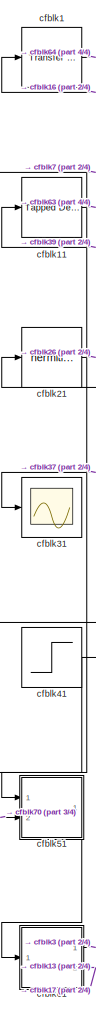
[diagram: root canvas - part 1/4, left side, full height]
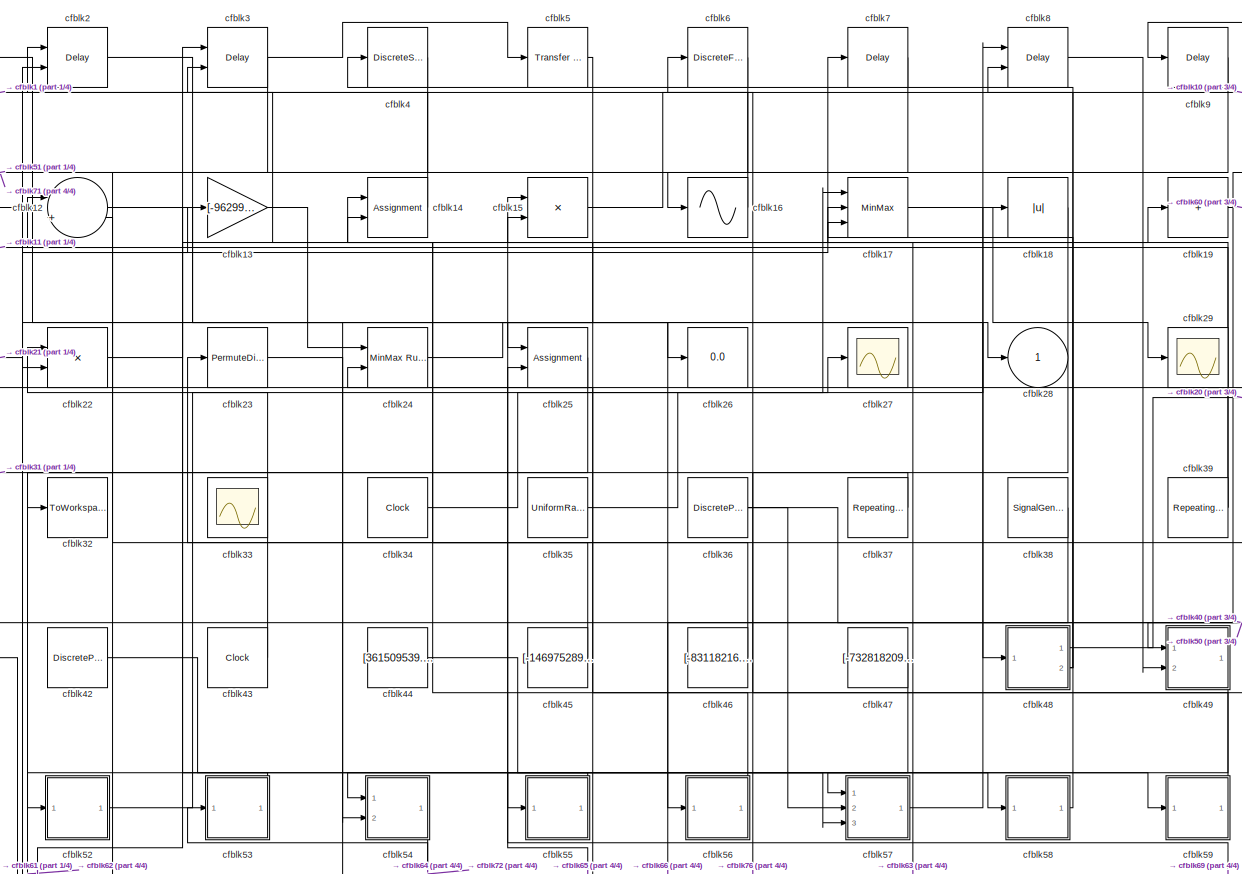
[diagram: root canvas - part 2/4, full width, middle band]
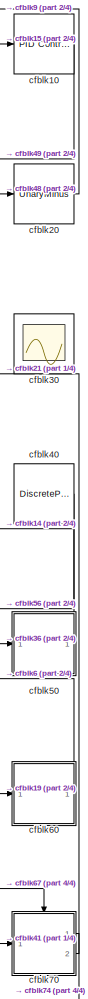
[diagram: root canvas - part 3/4, right side, full height]
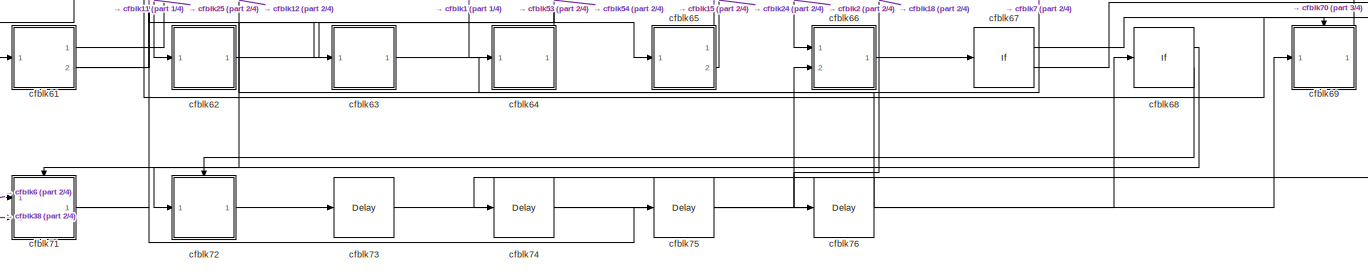
[diagram: root canvas - part 4/4, full width, bottom band]
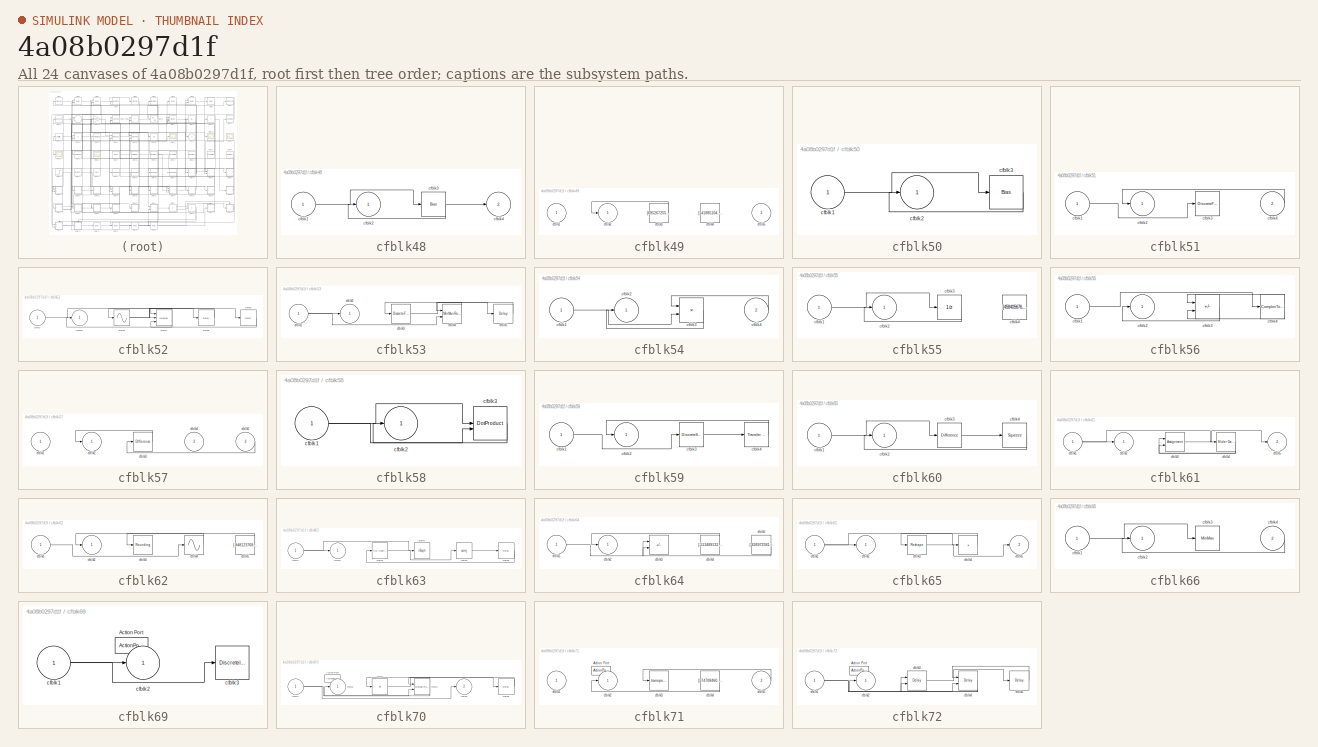
[diagram: thumbnail index - all 24 canvases of the model, root first then tree order]
MODEL slx_4a08b0297d1f
KIND model
CONFIG AbsTol = auto
CONFIG EnableMultiTasking = off
CONFIG FixedStep = auto
CONFIG MaxStep = auto
CONFIG MinStep = auto
CONFIG RelTol = 1e-3
CONFIG SampleTimeConstraint = Unconstrained
CONFIG SolverName = VariableStepAuto
CONFIG StartTime = 0.0
CONFIG StopTime = 10.0
BLOCK [Reference] cfblk1  REF=simulink/Discrete/Transfer Fcn
Real Zero
  Ports = [1, 1]
  SourceBlock = simulink/Discrete/Transfer Fcn\nReal Zero
  SourceProductBaseCode = SL
  SourceType = Transfer Fcn Real Zero
BLOCK [Reference] cfblk10  REF=slpidlib/PID Controller
  Ports = [1, 1]
  SourceBlock = slpidlib/PID Controller
  SourceProductBaseCode = SL
  SourceType = PID 1dof
BLOCK [Reference] cfblk11  REF=simulink/Discrete/Tapped Delay
  Ports = [1, 1]
  SourceBlock = simulink/Discrete/Tapped Delay
  SourceProductBaseCode = SL
  SourceType = Tapped Delay Line
BLOCK [Sum] cfblk12
  Inputs = |++
  Ports = [2, 1]
BLOCK [Gain] cfblk13
  Gain = [-962996448.991357]
BLOCK [Assignment] cfblk14
  DiagnosticForDimensions = Warning
  IndexOptions = Index vector (dialog)
  Indices = 1
  OutputSizes = 1
  Ports = [2, 1]
BLOCK [Product] cfblk15
  Inputs = **
  Ports = [2, 1]
BLOCK [Sin] cfblk16
  Ports = [1, 1]
  SampleTime = 0
  TimeSource = Use external signal
BLOCK [MinMax] cfblk17
  Inputs = 3
  Ports = [3, 1]
BLOCK [Abs] cfblk18
  SaturateOnIntegerOverflow = off
BLOCK [Sum] cfblk19
  IconShape = rectangular
  Inputs = +
  Ports = [1, 1]
BLOCK [Delay] cfblk2
  InputPortMap = u0,e6
  Ports = [2, 1]
  SampleTime = 1
  ShowEnablePort = on
BLOCK [UnaryMinus] cfblk20
BLOCK [Math] cfblk21
  Operator = hermitian
  Ports = [1, 1]
BLOCK [Product] cfblk22
  Ports = [2, 1]
BLOCK [PermuteDimensions] cfblk23
BLOCK [Reference] cfblk24  REF=simulink/Math
Operations/MinMax
Running
Resettable
  Ports = [2, 1]
  SourceBlock = simulink/Math\nOperations/MinMax\nRunning\nResettable
  SourceProductBaseCode = SL
  SourceType = MinMax Running Resettable
BLOCK [Assignment] cfblk25
  DiagnosticForDimensions = Warning
  IndexOptions = Index vector (dialog)
  Indices = 1
  OutputSizes = 1
  Ports = [2, 1]
BLOCK [Display] cfblk26
  Decimation = 1
  Ports = [1]
BLOCK [Scope] cfblk27
  Floating = off
  NumInputPorts = 1
  Ports = [1]
BLOCK [Outport] cfblk28
BLOCK [Scope] cfblk29
  Floating = off
  NumInputPorts = 1
  Ports = [1]
BLOCK [Delay] cfblk3
  DelayLengthSource = Input port
  InputPortMap = u0,p1
  Ports = [2, 1]
  SampleTime = 1
BLOCK [Scope] cfblk30
  Floating = on
  NumInputPorts = 1
  Ports = []
BLOCK [Scope] cfblk31
  Floating = off
  NumInputPorts = 1
  Ports = [1]
BLOCK [ToWorkspace] cfblk32
  FixptAsFi = on
  MaxDataPoints = inf
  Ports = [1]
  SampleTime = -1
  SaveFormat = Timeseries
  VariableName = fbnziih
BLOCK [Scope] cfblk33
  Floating = on
  NumInputPorts = 1
  Ports = []
BLOCK [Clock] cfblk34
BLOCK [UniformRandomNumber] cfblk35
  Maximum = [926374637.674813]
  Minimum = [-899286631.365557]
  SampleTime = 0.1
  Seed = [29961251.000000]
BLOCK [DiscretePulseGenerator] cfblk36
  Amplitude = [-229932687.777880]
  Period = [45551457.164221]
  PhaseDelay = [1.000000]
  Ports = [0, 1]
  PulseType = Time based
  PulseWidth = 5
BLOCK [Reference] cfblk37  REF=simulink/Sources/Repeating
Sequence
Stair
  Ports = [0, 1]
  SourceBlock = simulink/Sources/Repeating\nSequence\nStair
  SourceProductBaseCode = SL
  SourceType = Repeating Sequence Stair
BLOCK [SignalGenerator] cfblk38
  Amplitude = [754582492.273324]
  Ports = [0, 1]
  WaveForm = sawtooth
BLOCK [Reference] cfblk39  REF=simulink/Sources/Repeating
Sequence
Stair
  Ports = [0, 1]
  SourceBlock = simulink/Sources/Repeating\nSequence\nStair
  SourceProductBaseCode = SL
  SourceType = Repeating Sequence Stair
BLOCK [DiscreteStateSpace] cfblk4
BLOCK [DiscretePulseGenerator] cfblk40
  Amplitude = [574486039.532884]
  Period = [50865221.708180]
  PhaseDelay = [9.000000]
  Ports = [0, 1]
  PulseType = Time based
  PulseWidth = 5
BLOCK [Step] cfblk41
  After = [727022532.262540]
  Before = [271111049.835422]
  SampleTime = 0
  Time = [32.000000]
BLOCK [DiscretePulseGenerator] cfblk42
  Amplitude = [-857152997.487512]
  Period = [21737191.178487]
  PhaseDelay = [9.000000]
  Ports = [0, 1]
  PulseType = Time based
  PulseWidth = 5
BLOCK [Clock] cfblk43
BLOCK [Constant] cfblk44
  SampleTime = 1
  Value = [361509539.437803]
BLOCK [Constant] cfblk45
  SampleTime = 1
  Value = [-146975289.230768]
BLOCK [Constant] cfblk46
  SampleTime = 1
  Value = [-83118216.263977]
BLOCK [Constant] cfblk47
  SampleTime = 1
  Value = [-732818209.951177]
BLOCK [SubSystem] cfblk48
  Ports = [1, 2]
  RequestExecContextInheritance = off
BLOCK [Inport] cfblk48/cfblk1
BLOCK [Outport] cfblk48/cfblk2
BLOCK [Bias] cfblk48/cfblk3
  Bias = [-28596696.417519]
  SaturateOnIntegerOverflow = off
BLOCK [Outport] cfblk48/cfblk4
  Port = 2
BLOCK [SubSystem] cfblk49
  Ports = [2, 1]
  RequestExecContextInheritance = off
BLOCK [Inport] cfblk49/cfblk1
BLOCK [Outport] cfblk49/cfblk2
BLOCK [Constant] cfblk49/cfblk3
  SampleTime = 1
  Value = [695267255.341315]
BLOCK [Constant] cfblk49/cfblk4
  SampleTime = 1
  Value = [141885104.239582]
BLOCK [Inport] cfblk49/cfblk5
  Port = 2
BLOCK [Reference] cfblk5  REF=simulink/Discrete/Transfer Fcn
First Order
  Ports = [1, 1]
  SourceBlock = simulink/Discrete/Transfer Fcn\nFirst Order
  SourceProductBaseCode = SL
  SourceType = First Order Transfer Fcn
BLOCK [SubSystem] cfblk50
  Ports = [1, 1]
  RequestExecContextInheritance = off
BLOCK [Inport] cfblk50/cfblk1
BLOCK [Outport] cfblk50/cfblk2
BLOCK [Bias] cfblk50/cfblk3
  Bias = [731161692.289361]
  SaturateOnIntegerOverflow = off
BLOCK [SubSystem] cfblk51
  Ports = [2, 1]
  RequestExecContextInheritance = off
BLOCK [Inport] cfblk51/cfblk1
BLOCK [Outport] cfblk51/cfblk2
BLOCK [DiscreteFilter] cfblk51/cfblk3
  InputPortMap = u0
  Ports = [1, 1]
  SampleTime = 1
BLOCK [Inport] cfblk51/cfblk4
  Port = 2
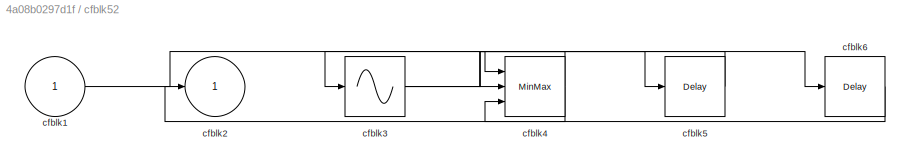
BLOCK [SubSystem] cfblk52
  Ports = [1, 1]
  RequestExecContextInheritance = off
BLOCK [Inport] cfblk52/cfblk1
BLOCK [Outport] cfblk52/cfblk2
BLOCK [Sin] cfblk52/cfblk3
  Ports = [1, 1]
  SampleTime = 0
  TimeSource = Use external signal
BLOCK [MinMax] cfblk52/cfblk4
  Inputs = 3
  Ports = [3, 1]
BLOCK [Delay] cfblk52/cfblk5
  InputPortMap = u0
  Ports = [1, 1]
  SampleTime = 1
BLOCK [Delay] cfblk52/cfblk6
  InputPortMap = u0
  Ports = [1, 1]
  SampleTime = 1
BLOCK [SubSystem] cfblk53
  Ports = [1, 1]
  RequestExecContextInheritance = off
BLOCK [Inport] cfblk53/cfblk1
BLOCK [Outport] cfblk53/cfblk2
BLOCK [DiscreteFir] cfblk53/cfblk3
  InputPortMap = u0
  OutputPortMap = o0
  Ports = [1, 1]
  SampleTime = 1
BLOCK [Reference] cfblk53/cfblk4  REF=simulink/Math
Operations/MinMax
Running
Resettable
  Ports = [2, 1]
  SourceBlock = simulink/Math\nOperations/MinMax\nRunning\nResettable
  SourceProductBaseCode = SL
  SourceType = MinMax Running Resettable
BLOCK [Delay] cfblk53/cfblk5
  InputPortMap = u0
  Ports = [1, 1]
  SampleTime = 1
BLOCK [SubSystem] cfblk54
  Ports = [2, 1]
  RequestExecContextInheritance = off
BLOCK [Inport] cfblk54/cfblk1
BLOCK [Outport] cfblk54/cfblk2
BLOCK [Product] cfblk54/cfblk3
  Inputs = **
  Ports = [2, 1]
BLOCK [Inport] cfblk54/cfblk4
  Port = 2
BLOCK [SubSystem] cfblk55
  Ports = [1, 1]
  RequestExecContextInheritance = off
BLOCK [Inport] cfblk55/cfblk1
BLOCK [Outport] cfblk55/cfblk2
BLOCK [UnitDelay] cfblk55/cfblk3
  HasFrameUpgradeWarning = on
BLOCK [Constant] cfblk55/cfblk4
  SampleTime = 1
  Value = [458405676.200662]
BLOCK [SubSystem] cfblk56
  Ports = [1, 1]
  RequestExecContextInheritance = off
BLOCK [Inport] cfblk56/cfblk1
BLOCK [Outport] cfblk56/cfblk2
BLOCK [Sum] cfblk56/cfblk3
  IconShape = rectangular
  Inputs = +-
  Ports = [2, 1]
BLOCK [ComplexToMagnitudeAngle] cfblk56/cfblk4
  Ports = [1, 2]
BLOCK [SubSystem] cfblk57
  Ports = [3, 1]
  RequestExecContextInheritance = off
BLOCK [Inport] cfblk57/cfblk1
BLOCK [Outport] cfblk57/cfblk2
BLOCK [Reference] cfblk57/cfblk3  REF=simulink/Discrete/Difference
  Ports = [1, 1]
  SourceBlock = simulink/Discrete/Difference
  SourceProductBaseCode = SL
  SourceType = Difference
BLOCK [Inport] cfblk57/cfblk4
  Port = 2
BLOCK [Inport] cfblk57/cfblk5
  Port = 3
BLOCK [SubSystem] cfblk58
  Ports = [1, 1]
  RequestExecContextInheritance = off
BLOCK [Inport] cfblk58/cfblk1
BLOCK [Outport] cfblk58/cfblk2
BLOCK [DotProduct] cfblk58/cfblk3
  OutDataTypeStr = Inherit: Inherit via internal rule
BLOCK [SubSystem] cfblk59
  Ports = [1, 1]
  RequestExecContextInheritance = off
BLOCK [Inport] cfblk59/cfblk1
BLOCK [Outport] cfblk59/cfblk2
BLOCK [DiscreteStateSpace] cfblk59/cfblk3
BLOCK [Reference] cfblk59/cfblk4  REF=simulink/Discrete/Transfer Fcn
Lead or Lag
  Ports = [1, 1]
  SourceBlock = simulink/Discrete/Transfer Fcn\nLead or Lag
  SourceProductBaseCode = SL
  SourceType = Lead or Lag Compensator
BLOCK [DiscreteFilter] cfblk6
  InputPortMap = u0
  Ports = [1, 1]
  SampleTime = 1
BLOCK [SubSystem] cfblk60
  Ports = [1, 1]
  RequestExecContextInheritance = off
BLOCK [Inport] cfblk60/cfblk1
BLOCK [Outport] cfblk60/cfblk2
BLOCK [Reference] cfblk60/cfblk3  REF=simulink/Discrete/Difference
  Ports = [1, 1]
  SourceBlock = simulink/Discrete/Difference
  SourceProductBaseCode = SL
  SourceType = Difference
BLOCK [Squeeze] cfblk60/cfblk4
BLOCK [SubSystem] cfblk61
  Ports = [1, 2]
  RequestExecContextInheritance = off
BLOCK [Inport] cfblk61/cfblk1
BLOCK [Outport] cfblk61/cfblk2
BLOCK [Assignment] cfblk61/cfblk3
  DiagnosticForDimensions = Warning
  IndexOptions = Index vector (dialog)
  Indices = 1
  OutputSizes = 1
  Ports = [2, 1]
BLOCK [Reference] cfblk61/cfblk4  REF=simulink/Math
Operations/Slider
Gain
  Ports = [1, 1]
  SourceBlock = simulink/Math\nOperations/Slider\nGain
  SourceProductBaseCode = SL
  SourceType = Slider Gain
BLOCK [Outport] cfblk61/cfblk5
  Port = 2
BLOCK [SubSystem] cfblk62
  Ports = [1, 1]
  RequestExecContextInheritance = off
BLOCK [Inport] cfblk62/cfblk1
BLOCK [Outport] cfblk62/cfblk2
BLOCK [Rounding] cfblk62/cfblk3
BLOCK [Sin] cfblk62/cfblk4
  Ports = [1, 1]
  SampleTime = 0
  TimeSource = Use external signal
BLOCK [Constant] cfblk62/cfblk5
  SampleTime = 1
  Value = [-948123768.890981]
BLOCK [SubSystem] cfblk63
  Ports = [1, 1]
  RequestExecContextInheritance = off
BLOCK [Inport] cfblk63/cfblk1
BLOCK [Outport] cfblk63/cfblk2
BLOCK [Reference] cfblk63/cfblk3  REF=slpidlib/PID Controller
  Ports = [1, 1]
  SourceBlock = slpidlib/PID Controller
  SourceProductBaseCode = SL
  SourceType = PID 1dof
BLOCK [Sqrt] cfblk63/cfblk4
  AlgorithmType = Newton-Raphson
  Operator = rSqrt
BLOCK [Math] cfblk63/cfblk5
  Operator = conj
  Ports = [1, 1]
BLOCK [Delay] cfblk63/cfblk6
  InputPortMap = u0
  Ports = [1, 1]
  SampleTime = 1
BLOCK [SubSystem] cfblk64
  Ports = [1, 1]
  RequestExecContextInheritance = off
BLOCK [Inport] cfblk64/cfblk1
BLOCK [Outport] cfblk64/cfblk2
BLOCK [Sum] cfblk64/cfblk3
  IconShape = rectangular
  Inputs = +-
  Ports = [2, 1]
BLOCK [Constant] cfblk64/cfblk4
  SampleTime = 1
  Value = [-513489132.461734]
BLOCK [Constant] cfblk64/cfblk5
  SampleTime = 1
  Value = [-426972581.160443]
BLOCK [SubSystem] cfblk65
  Ports = [1, 2]
  RequestExecContextInheritance = off
BLOCK [Inport] cfblk65/cfblk1
BLOCK [Outport] cfblk65/cfblk2
BLOCK [Reshape] cfblk65/cfblk3
  Ports = [1, 1]
BLOCK [Sum] cfblk65/cfblk4
  IconShape = rectangular
  Inputs = +
  Ports = [1, 1]
BLOCK [Outport] cfblk65/cfblk5
  Port = 2
BLOCK [SubSystem] cfblk66
  Ports = [2, 1]
  RequestExecContextInheritance = off
BLOCK [Inport] cfblk66/cfblk1
BLOCK [Outport] cfblk66/cfblk2
BLOCK [MinMax] cfblk66/cfblk3
  Ports = [1, 1]
BLOCK [Inport] cfblk66/cfblk4
  Port = 2
BLOCK [If] cfblk67
  IfExpression = u1 >= 0
  Ports = [1, 2]
  SampleTime = 1
BLOCK [If] cfblk68
  IfExpression = u1 >= 0
  Ports = [1, 2]
  SampleTime = 1
BLOCK [SubSystem] cfblk69
  Ports = [1, 1, 0, 0, 0, 0, 0, 1]
  RequestExecContextInheritance = off
  TreatAsAtomicUnit = on
BLOCK [ActionPort] cfblk69/Action Port
  ActionPortLabel = if(u1 >= 0)
BLOCK [Inport] cfblk69/cfblk1
BLOCK [Outport] cfblk69/cfblk2
BLOCK [DiscreteIntegrator] cfblk69/cfblk3
  ICPrevOutput = DiscIntNeverNeededParam
  ICPrevScaledInput = DiscIntNeverNeededParam
  InitialConditionSetting = Auto
  Ports = [1, 1]
  SampleTime = -1
BLOCK [Delay] cfblk7
  InputPortMap = u0
  Ports = [1, 1]
  SampleTime = 1
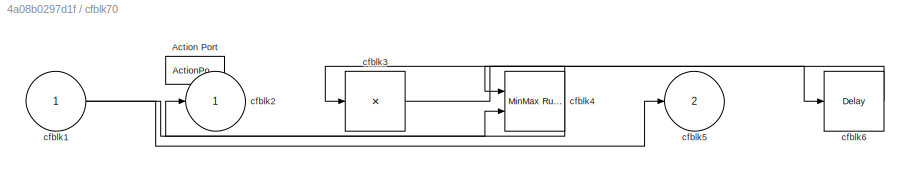
BLOCK [SubSystem] cfblk70
  Ports = [1, 2, 0, 0, 0, 0, 0, 1]
  RequestExecContextInheritance = off
  TreatAsAtomicUnit = on
BLOCK [ActionPort] cfblk70/Action Port
  ActionPortLabel = else
BLOCK [Inport] cfblk70/cfblk1
BLOCK [Outport] cfblk70/cfblk2
BLOCK [Product] cfblk70/cfblk3
  Inputs = *
  Ports = [1, 1]
BLOCK [Reference] cfblk70/cfblk4  REF=simulink/Math
Operations/MinMax
Running
Resettable
  Ports = [2, 1]
  SourceBlock = simulink/Math\nOperations/MinMax\nRunning\nResettable
  SourceProductBaseCode = SL
  SourceType = MinMax Running Resettable
BLOCK [Outport] cfblk70/cfblk5
  Port = 2
BLOCK [Delay] cfblk70/cfblk6
  InputPortMap = u0
  Ports = [1, 1]
BLOCK [SubSystem] cfblk71
  Ports = [2, 1, 0, 0, 0, 0, 0, 1]
  RequestExecContextInheritance = off
  TreatAsAtomicUnit = on
BLOCK [ActionPort] cfblk71/Action Port
  ActionPortLabel = if(u1 >= 0)
BLOCK [Inport] cfblk71/cfblk1
BLOCK [Outport] cfblk71/cfblk2
BLOCK [Math] cfblk71/cfblk3
  Operator = transpose
  Ports = [1, 1]
BLOCK [Constant] cfblk71/cfblk4
  SampleTime = 1
  Value = [374708460.785784]
BLOCK [Inport] cfblk71/cfblk5
  Port = 2
BLOCK [SubSystem] cfblk72
  Ports = [1, 1, 0, 0, 0, 0, 0, 1]
  RequestExecContextInheritance = off
  TreatAsAtomicUnit = on
BLOCK [ActionPort] cfblk72/Action Port
  ActionPortLabel = else
BLOCK [Inport] cfblk72/cfblk1
BLOCK [Outport] cfblk72/cfblk2
BLOCK [Delay] cfblk72/cfblk3
  InputPortMap = u0,e6
  Ports = [2, 1]
  ShowEnablePort = on
BLOCK [Delay] cfblk72/cfblk4
  InputPortMap = u0,e6
  Ports = [2, 1]
  ShowEnablePort = on
BLOCK [Delay] cfblk72/cfblk5
  InputPortMap = u0
  Ports = [1, 1]
BLOCK [Delay] cfblk73
  InputPortMap = u0
  Ports = [1, 1]
  SampleTime = 1
BLOCK [Delay] cfblk74
  InputPortMap = u0
  Ports = [1, 1]
  SampleTime = 1
BLOCK [Delay] cfblk75
  InputPortMap = u0
  Ports = [1, 1]
  SampleTime = 1
BLOCK [Delay] cfblk76
  InputPortMap = u0
  Ports = [1, 1]
  SampleTime = 1
BLOCK [Delay] cfblk8
  InputPortMap = u0,e6
  Ports = [2, 1]
  SampleTime = 1
  ShowEnablePort = on
BLOCK [Delay] cfblk9
  InputPortMap = u0
  Ports = [1, 1]
  SampleTime = 1
LINE cfblk10:1 -> cfblk49:1
LINE cfblk11:1 -> cfblk63:1
NET cfblk12:1 -> cfblk48:1, cfblk57:3
LINE cfblk13:1 -> cfblk24:1
LINE cfblk14:1 -> cfblk2:1
LINE cfblk15:1 -> cfblk10:1
LINE cfblk16:1 -> cfblk1:1
LINE cfblk17:1 -> cfblk29:1
LINE cfblk18:1 -> cfblk76:1
LINE cfblk19:1 -> cfblk60:1
LINE cfblk1:1 -> cfblk64:1
LINE cfblk20:1 -> cfblk9:1
LINE cfblk21:1 -> cfblk26:1
LINE cfblk22:1 -> cfblk19:1
LINE cfblk23:1 -> cfblk54:2
LINE cfblk24:1 -> cfblk28:1
LINE cfblk25:1 -> cfblk62:1
LINE cfblk2:1 -> cfblk66:1
LINE cfblk34:1 -> cfblk17:1
LINE cfblk35:1 -> cfblk8:1
NET cfblk36:1 -> cfblk50:1, cfblk57:2
LINE cfblk37:1 -> cfblk31:1
LINE cfblk38:1 -> cfblk71:2
NET cfblk39:1 -> cfblk11:1, cfblk3:2
NET cfblk3:1 -> cfblk22:2, cfblk5:1
LINE cfblk40:1 -> cfblk56:1
NET cfblk41:1 -> cfblk51:2, cfblk70:1
LINE cfblk42:1 -> cfblk58:1
LINE cfblk43:1 -> cfblk22:1
LINE cfblk44:1 -> cfblk59:1
LINE cfblk45:1 -> cfblk12:1
LINE cfblk46:1 -> cfblk23:1
LINE cfblk47:1 -> cfblk57:1
LINE cfblk48/cfblk1:1 -> cfblk48/cfblk3:1
NET cfblk48/cfblk3:1 -> cfblk48/cfblk2:1, cfblk48/cfblk4:1
LINE cfblk48:1 -> cfblk20:1
NET cfblk48:2 -> cfblk17:3, cfblk4:1
LINE cfblk49/cfblk3:1 -> cfblk49/cfblk2:1
LINE cfblk49:1 -> cfblk55:1
LINE cfblk4:1 -> cfblk32:1
LINE cfblk50/cfblk1:1 -> cfblk50/cfblk3:1
LINE cfblk50/cfblk3:1 -> cfblk50/cfblk2:1
LINE cfblk50:1 -> cfblk14:2
LINE cfblk51/cfblk1:1 -> cfblk51/cfblk3:1
LINE cfblk51/cfblk4:1 -> cfblk51/cfblk2:1
LINE cfblk51:1 -> cfblk61:1
LINE cfblk52/cfblk1:1 -> cfblk52/cfblk4:1
NET cfblk52/cfblk3:1 -> cfblk52/cfblk5:1, cfblk52/cfblk6:1
NET cfblk52/cfblk4:1 -> cfblk52/cfblk2:1, cfblk52/cfblk3:1
LINE cfblk52/cfblk5:1 -> cfblk52/cfblk4:2
LINE cfblk52/cfblk6:1 -> cfblk52/cfblk4:3
LINE cfblk52:1 -> cfblk27:1
NET cfblk53/cfblk1:1 -> cfblk53/cfblk2:1, cfblk53/cfblk4:2
LINE cfblk53/cfblk3:1 -> cfblk53/cfblk5:1
LINE cfblk53/cfblk4:1 -> cfblk53/cfblk3:1
LINE cfblk53/cfblk5:1 -> cfblk53/cfblk4:1
LINE cfblk53:1 -> cfblk52:1
LINE cfblk54/cfblk1:1 -> cfblk54/cfblk3:2
LINE cfblk54/cfblk3:1 -> cfblk54/cfblk2:1
LINE cfblk54/cfblk4:1 -> cfblk54/cfblk3:1
LINE cfblk54:1 -> cfblk72:1
LINE cfblk55/cfblk1:1 -> cfblk55/cfblk3:1
LINE cfblk55/cfblk3:1 -> cfblk55/cfblk2:1
LINE cfblk55:1 -> cfblk54:1
LINE cfblk56/cfblk1:1 -> cfblk56/cfblk4:1
LINE cfblk56/cfblk3:1 -> cfblk56/cfblk2:1
LINE cfblk56/cfblk4:1 -> cfblk56/cfblk3:1
LINE cfblk56/cfblk4:2 -> cfblk56/cfblk3:2
LINE cfblk56:1 -> cfblk14:1
LINE cfblk57/cfblk3:1 -> cfblk57/cfblk2:1
LINE cfblk57/cfblk5:1 -> cfblk57/cfblk3:1
LINE cfblk57:1 -> cfblk18:1
NET cfblk58/cfblk1:1 -> cfblk58/cfblk3:1, cfblk58/cfblk3:2
LINE cfblk58/cfblk3:1 -> cfblk58/cfblk2:1
LINE cfblk58:1 -> cfblk8:2
LINE cfblk59/cfblk1:1 -> cfblk59/cfblk3:1
LINE cfblk59/cfblk3:1 -> cfblk59/cfblk4:1
LINE cfblk59/cfblk4:1 -> cfblk59/cfblk2:1
LINE cfblk59:1 -> cfblk15:2
LINE cfblk5:1 -> cfblk25:1
LINE cfblk60/cfblk1:1 -> cfblk60/cfblk3:1
LINE cfblk60/cfblk3:1 -> cfblk60/cfblk4:1
LINE cfblk60/cfblk4:1 -> cfblk60/cfblk2:1
LINE cfblk60:1 -> cfblk6:1
NET cfblk61/cfblk1:1 -> cfblk61/cfblk2:1, cfblk61/cfblk4:1
LINE cfblk61/cfblk3:1 -> cfblk61/cfblk5:1
NET cfblk61/cfblk4:1 -> cfblk61/cfblk3:1, cfblk61/cfblk3:2
LINE cfblk61:1 -> cfblk3:1
NET cfblk61:2 -> cfblk13:1, cfblk17:2
LINE cfblk62/cfblk1:1 -> cfblk62/cfblk4:1
LINE cfblk62/cfblk4:1 -> cfblk62/cfblk2:1
LINE cfblk62/cfblk5:1 -> cfblk62/cfblk3:1
LINE cfblk62:1 -> cfblk65:1
NET cfblk63/cfblk1:1 -> cfblk63/cfblk2:1, cfblk63/cfblk4:1
LINE cfblk63/cfblk3:1 -> cfblk63/cfblk5:1
LINE cfblk63/cfblk5:1 -> cfblk63/cfblk6:1
LINE cfblk63/cfblk6:1 -> cfblk63/cfblk3:1
LINE cfblk63:1 -> cfblk7:1
LINE cfblk64/cfblk1:1 -> cfblk64/cfblk3:2
LINE cfblk64/cfblk4:1 -> cfblk64/cfblk2:1
LINE cfblk64/cfblk5:1 -> cfblk64/cfblk3:1
LINE cfblk64:1 -> cfblk53:1
NET cfblk65/cfblk1:1 -> cfblk65/cfblk2:1, cfblk65/cfblk4:1
LINE cfblk65/cfblk3:1 -> cfblk65/cfblk5:1
LINE cfblk65/cfblk4:1 -> cfblk65/cfblk3:1
LINE cfblk65:1 -> cfblk15:1
LINE cfblk65:2 -> cfblk24:2
LINE cfblk66/cfblk1:1 -> cfblk66/cfblk3:1
LINE cfblk66/cfblk4:1 -> cfblk66/cfblk2:1
LINE cfblk66:1 -> cfblk67:1
LINE cfblk67:1 -> cfblk69:ifaction
LINE cfblk67:2 -> cfblk70:ifaction
LINE cfblk68:1 -> cfblk71:ifaction
LINE cfblk68:2 -> cfblk72:ifaction
NET cfblk69/cfblk1:1 -> cfblk69/cfblk2:1, cfblk69/cfblk3:1
LINE cfblk69:1 -> cfblk25:2
LINE cfblk6:1 -> cfblk71:1
NET cfblk70/cfblk1:1 -> cfblk70/cfblk4:2, cfblk70/cfblk5:1
LINE cfblk70/cfblk3:1 -> cfblk70/cfblk6:1
NET cfblk70/cfblk4:1 -> cfblk70/cfblk2:1, cfblk70/cfblk3:1
LINE cfblk70/cfblk6:1 -> cfblk70/cfblk4:1
LINE cfblk70:1 -> cfblk74:1
LINE cfblk70:2 -> cfblk21:1
LINE cfblk71/cfblk4:1 -> cfblk71/cfblk2:1
LINE cfblk71/cfblk5:1 -> cfblk71/cfblk3:1
NET cfblk71:1 -> cfblk2:2, cfblk75:1
NET cfblk72/cfblk1:1 -> cfblk72/cfblk3:1, cfblk72/cfblk4:2
LINE cfblk72/cfblk3:1 -> cfblk72/cfblk5:1
NET cfblk72/cfblk4:1 -> cfblk72/cfblk2:1, cfblk72/cfblk3:2
LINE cfblk72/cfblk5:1 -> cfblk72/cfblk4:1
LINE cfblk72:1 -> cfblk73:1
LINE cfblk73:1 -> cfblk69:1
LINE cfblk74:1 -> cfblk66:2
LINE cfblk75:1 -> cfblk68:1
LINE cfblk76:1 -> cfblk12:2
LINE cfblk7:1 -> cfblk51:1
LINE cfblk8:1 -> cfblk49:2
LINE cfblk9:1 -> cfblk16:1
note: NET lines group one-source signal fan-out (src -> all destinations, sorted); 1:1 wires keep LINE
